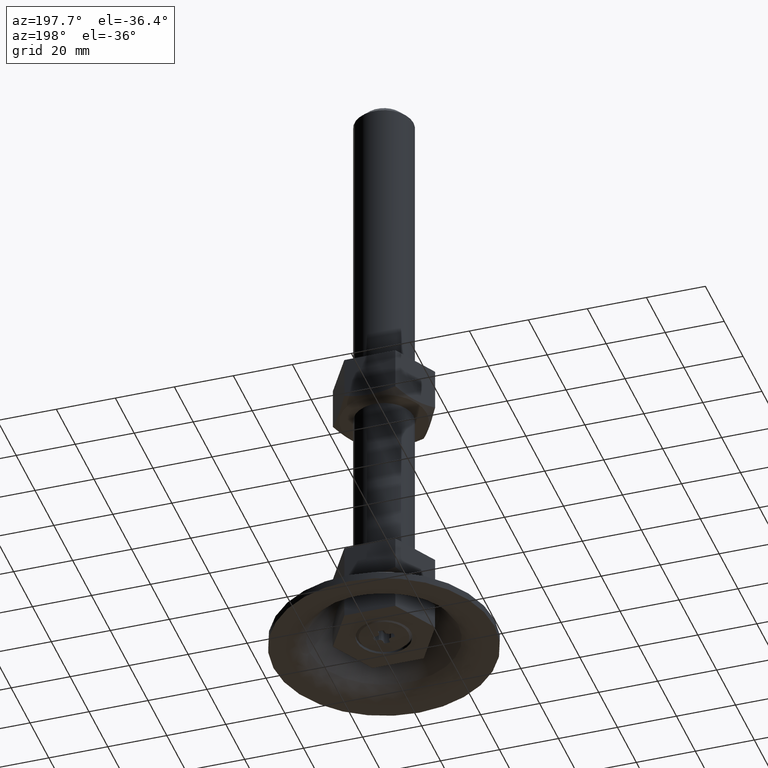
[diagram: clean part render]
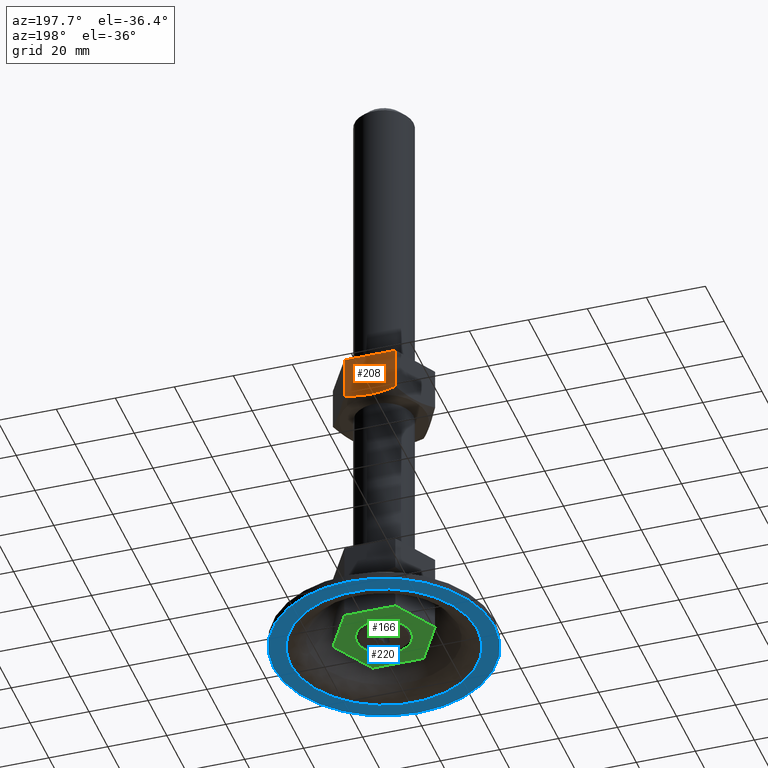
[diagram: same view with three faces highlighted in distinct colors, each labeled with its STEP entity id]
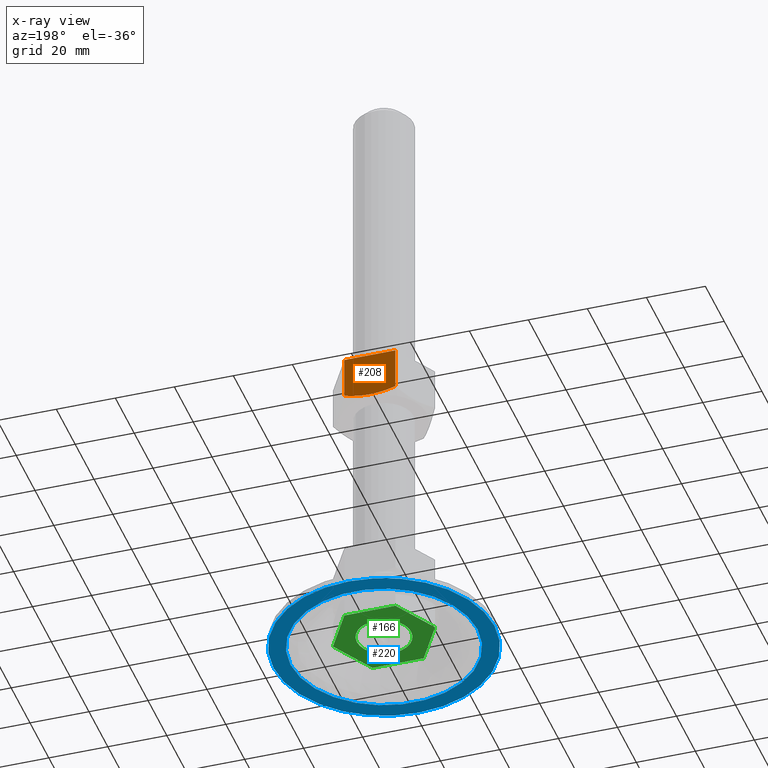
[diagram: x-ray of the same camera — body ghosted, the three highlighted faces saturated]
A machine part, auxiliary view with three faces highlighted in distinct colors.
The next image is the same camera in x-ray (body ghosted, the three faces saturated) — at least one of them is partly hidden behind the body in this view.
Their STEP definitions:

[orange] entity #208 — the highlighted planar face has unit normal (0, 1, 0).
#208=ADVANCED_FACE('',(#836),#835,.T.);
#835=PLANE('',#1545);
#836=FACE_OUTER_BOUND('',#1546,.T.);
#1542=CARTESIAN_POINT('',(1.03923048454E+01,1.50000000000E+01,5.82173577351E+01));
#1543=DIRECTION('',(8.86365613255E-14,1.00000000000E+00,0.00000000000E+00));
#1544=DIRECTION('',(-1.00000000000E+00,8.86365613255E-14,0.00000000000E+00));
#1545=AXIS2_PLACEMENT_3D('',#1542,#1543,#1544);
#1546=EDGE_LOOP('',(#2111,#2112,#2113,#2114));
#2111=ORIENTED_EDGE('',*,*,#2387,.F.);
#2112=ORIENTED_EDGE('',*,*,#2388,.T.);
#2113=ORIENTED_EDGE('',*,*,#2383,.T.);
#2114=ORIENTED_EDGE('',*,*,#2389,.F.);
#2383=EDGE_CURVE('',#3381,#3382,#3383,.T.);
#2387=EDGE_CURVE('',#3409,#3410,#3411,.T.);
#2388=EDGE_CURVE('',#3409,#3381,#3417,.T.);
#2389=EDGE_CURVE('',#3410,#3382,#3423,.T.);
#3381=VERTEX_POINT('',#4475);
#3382=VERTEX_POINT('',#4476);
#3383=LINE('',#4477,#4478);
#3409=VERTEX_POINT('',#4500);
#3410=VERTEX_POINT('',#4501);
#3411=LINE('',#4502,#4503);
#3417=(BOUNDED_CURVE() B_SPLINE_CURVE(3,(#4505,#4506,#4507,#4508,#4509,#4510,#4511,#4512,#4513,#4514,#4515,#4516),.UNSPECIFIED.,.F.,.F.) B_SPLINE_CURVE_WITH_KNOTS((4,2,2,2,2,4),(-3.33077435779E-02,-2.89241218206E-02,-2.67323109419E-02,-2.45405000633E-02,-2.01568783059E-02,-1.57732565486E-02),.UNSPECIFIED.) CURVE() GEOMETRIC_REPRESENTATION_ITEM() RATIONAL_B_SPLINE_CURVE((1.00000000000E+00,1.00000000000E+00,1.00000000000E+00,1.00000000000E+00,1.00000000000E+00,1.00000000000E+00,1.00000000000E+00,1.00000000000E+00,1.00000000000E+00,1.00000000000E+00,1.00000000000E+00,1.00000000000E+00)) REPRESENTATION_ITEM('') );
#3423=LINE('',#4517,#4518);
#4475=CARTESIAN_POINT('',(-8.66025403784E+00,1.50000000000E+01,6.11284210296E+01));
#4476=CARTESIAN_POINT('',(-8.66025403784E+00,1.50000000000E+01,7.54999999330E+01));
#4477=CARTESIAN_POINT('',(-8.66025403784E+00,1.50000000000E+01,6.11284210296E+01));
#4478=VECTOR('',#4479,1.43715789034E+01);
#4479=DIRECTION('',(0.00000000000E+00,0.00000000000E+00,1.00000000000E+00));
#4500=CARTESIAN_POINT('',(8.66025403785E+00,1.50000000000E+01,6.11284210296E+01));
#4501=CARTESIAN_POINT('',(8.66025403785E+00,1.50000000000E+01,7.54999999330E+01));
#4502=CARTESIAN_POINT('',(8.66025403785E+00,1.50000000000E+01,6.11284210296E+01));
#4503=VECTOR('',#4504,1.43715789034E+01);
#4504=DIRECTION('',(0.00000000000E+00,0.00000000000E+00,1.00000000000E+00));
#4505=CARTESIAN_POINT('',(8.66025403785E+00,1.50000000000E+01,6.11284210296E+01));
#4506=CARTESIAN_POINT('',(7.26020348425E+00,1.50000000000E+01,6.07242612476E+01));
#4507=CARTESIAN_POINT('',(5.84217204545E+00,1.50000000000E+01,6.03877947608E+01));
#4508=CARTESIAN_POINT('',(3.67457508898E+00,1.50000000000E+01,6.00357543371E+01));
#4509=CARTESIAN_POINT('',(2.94524883475E+00,1.50000000000E+01,5.99439849060E+01));
#4510=CARTESIAN_POINT('',(1.47077462541E+00,1.50000000000E+01,5.98200105788E+01));
#4511=CARTESIAN_POINT('',(7.35428845956E-01,1.50000000000E+01,5.97887593452E+01));
#4512=CARTESIAN_POINT('',(-1.46190760533E+00,1.50000000000E+01,5.97885070258E+01));
#4513=CARTESIAN_POINT('',(-2.91637233655E+00,1.50000000000E+01,5.99143646522E+01));
#4514=CARTESIAN_POINT('',(-5.80756544098E+00,1.50000000000E+01,6.03804659344E+01));
#4515=CARTESIAN_POINT('',(-7.25031843251E+00,1.50000000000E+01,6.07214076790E+01));
#4516=CARTESIAN_POINT('',(-8.66025403784E+00,1.50000000000E+01,6.11284210296E+01));
#4517=CARTESIAN_POINT('',(8.66025403785E+00,1.50000000000E+01,7.54999999330E+01));
#4518=VECTOR('',#4519,1.73205080757E+01);
#4519=DIRECTION('',(-1.00000000000E+00,8.86101205886E-14,0.00000000000E+00));

[blue] entity #220 — the highlighted planar face has unit normal (0, 0, -1).
#220=ADVANCED_FACE('',(#959,#960),#958,.T.);
#958=PLANE('',#1620);
#959=FACE_OUTER_BOUND('',#1621,.T.);
#960=FACE_BOUND('',#1622,.T.);
#1617=CARTESIAN_POINT('',(8.50000000000E+01,-7.49519052839E+01,-3.10417424306E+01));
#1618=DIRECTION('',(-0.00000000000E+00,0.00000000000E+00,-1.00000000000E+00));
#1619=DIRECTION('',(-1.00000000000E+00,0.00000000000E+00,0.00000000000E+00));
#1620=AXIS2_PLACEMENT_3D('',#1617,#1618,#1619);
#1621=EDGE_LOOP('',(#2167,#2168));
#1622=EDGE_LOOP('',(#2169,#2170));
#2167=ORIENTED_EDGE('',*,*,#2415,.T.);
#2168=ORIENTED_EDGE('',*,*,#2416,.T.);
#2169=ORIENTED_EDGE('',*,*,#2417,.F.);
#2170=ORIENTED_EDGE('',*,*,#2418,.F.);
#2415=EDGE_CURVE('',#3595,#3596,#3597,.T.);
#2416=EDGE_CURVE('',#3596,#3595,#3603,.T.);
#2417=EDGE_CURVE('',#3609,#3610,#3611,.T.);
#2418=EDGE_CURVE('',#3610,#3609,#3617,.T.);
#3595=VERTEX_POINT('',#4653);
#3596=VERTEX_POINT('',#4654);
#3597=CIRCLE('',#4658,3.75000000000E+01);
#3603=CIRCLE('',#4662,3.75000000000E+01);
#3609=VERTEX_POINT('',#4663);
#3610=VERTEX_POINT('',#4664);
#3611=CIRCLE('',#4668,3.17144183842E+01);
#3617=CIRCLE('',#4672,3.17144183842E+01);
#4653=CARTESIAN_POINT('',(-3.75000000001E+01,0.00000000000E+00,-3.10417424306E+01));
#4654=CARTESIAN_POINT('',(3.75000000000E+01,2.36847578587E-15,-3.10417424306E+01));
#4655=CARTESIAN_POINT('',(-3.52144979843E-11,0.00000000000E+00,-3.10417424306E+01));
#4656=DIRECTION('',(-0.00000000000E+00,0.00000000000E+00,-1.00000000000E+00));
#4657=DIRECTION('',(-1.00000000000E+00,-1.22460635382E-16,0.00000000000E+00));
#4658=AXIS2_PLACEMENT_3D('',#4655,#4656,#4657);
#4659=CARTESIAN_POINT('',(-3.52144979843E-11,0.00000000000E+00,-3.10417424306E+01));
#4660=DIRECTION('',(-0.00000000000E+00,0.00000000000E+00,-1.00000000000E+00));
#4661=DIRECTION('',(-1.00000000000E+00,-1.22460635382E-16,0.00000000000E+00));
#4662=AXIS2_PLACEMENT_3D('',#4659,#4660,#4661);
#4663=CARTESIAN_POINT('',(3.17144183842E+01,3.55271367880E-15,-3.10417424306E+01));
#4664=CARTESIAN_POINT('',(-3.17144183843E+01,0.00000000000E+00,-3.10417424306E+01));
#4665=CARTESIAN_POINT('',(-3.52144979843E-11,0.00000000000E+00,-3.10417424306E+01));
#4666=DIRECTION('',(-0.00000000000E+00,0.00000000000E+00,-1.00000000000E+00));
#4667=DIRECTION('',(-1.00000000000E+00,-1.22460635382E-16,0.00000000000E+00));
#4668=AXIS2_PLACEMENT_3D('',#4665,#4666,#4667);
#4669=CARTESIAN_POINT('',(-3.52144979843E-11,0.00000000000E+00,-3.10417424306E+01));
#4670=DIRECTION('',(-0.00000000000E+00,0.00000000000E+00,-1.00000000000E+00));
#4671=DIRECTION('',(-1.00000000000E+00,-1.22460635382E-16,0.00000000000E+00));
#4672=AXIS2_PLACEMENT_3D('',#4669,#4670,#4671);

[green] entity #166 — the highlighted planar face has unit normal (0, 0, 1).
#166=ADVANCED_FACE('',(#414,#415),#413,.F.);
#413=PLANE('',#1243);
#414=FACE_OUTER_BOUND('',#1244,.T.);
#415=FACE_BOUND('',#1245,.T.);
#1240=CARTESIAN_POINT('',(-2.07846096908E+01,-1.80000000000E+01,-2.70000000000E+01));
#1241=DIRECTION('',(0.00000000000E+00,-0.00000000000E+00,1.00000000000E+00));
#1242=DIRECTION('',(1.00000000000E+00,0.00000000000E+00,0.00000000000E+00));
#1243=AXIS2_PLACEMENT_3D('',#1240,#1241,#1242);
#1244=EDGE_LOOP('',(#1897,#1898,#1899,#1900,#1901,#1902));
#1245=EDGE_LOOP('',(#1903,#1904));
#1897=ORIENTED_EDGE('',*,*,#2280,.F.);
#1898=ORIENTED_EDGE('',*,*,#2294,.F.);
#1899=ORIENTED_EDGE('',*,*,#2292,.F.);
#1900=ORIENTED_EDGE('',*,*,#2289,.F.);
#1901=ORIENTED_EDGE('',*,*,#2286,.F.);
#1902=ORIENTED_EDGE('',*,*,#2283,.F.);
#1903=ORIENTED_EDGE('',*,*,#2295,.F.);
#1904=ORIENTED_EDGE('',*,*,#2296,.F.);
#2280=EDGE_CURVE('',#2698,#2684,#2705,.T.);
#2283=EDGE_CURVE('',#2684,#2712,#2725,.T.);
#2286=EDGE_CURVE('',#2712,#2732,#2745,.T.);
#2289=EDGE_CURVE('',#2732,#2752,#2765,.T.);
#2292=EDGE_CURVE('',#2752,#2772,#2785,.T.);
#2294=EDGE_CURVE('',#2772,#2698,#2797,.T.);
#2295=EDGE_CURVE('',#2803,#2804,#2805,.T.);
#2296=EDGE_CURVE('',#2804,#2803,#2811,.T.);
#2684=VERTEX_POINT('',#4036);
#2698=VERTEX_POINT('',#4055);
#2705=LINE('',#4059,#4060);
#2712=VERTEX_POINT('',#4063);
#2725=LINE('',#4079,#4080);
#2732=VERTEX_POINT('',#4083);
#2745=LINE('',#4099,#4100);
#2752=VERTEX_POINT('',#4103);
#2765=LINE('',#4121,#4122);
#2772=VERTEX_POINT('',#4125);
#2785=LINE('',#4141,#4142);
#2797=LINE('',#4156,#4157);
#2803=VERTEX_POINT('',#4159);
#2804=VERTEX_POINT('',#4160);
#2805=CIRCLE('',#4164,9.20000000000E+00);
#2811=CIRCLE('',#4168,9.20000000000E+00);
#4036=CARTESIAN_POINT('',(8.66025403791E+00,-1.50000000000E+01,-2.70000000000E+01));
#4055=CARTESIAN_POINT('',(-8.66025403778E+00,-1.50000000000E+01,-2.70000000000E+01));
#4059=CARTESIAN_POINT('',(-8.66025403778E+00,-1.50000000000E+01,-2.70000000000E+01));
#4060=VECTOR('',#4061,1.73205080757E+01);
#4061=DIRECTION('',(1.00000000000E+00,4.31235920198E-12,0.00000000000E+00));
#4063=CARTESIAN_POINT('',(1.73205080757E+01,7.50759454604E-11,-2.70000000000E+01));
#4079=CARTESIAN_POINT('',(8.66025403791E+00,-1.50000000000E+01,-2.70000000000E+01));
#4080=VECTOR('',#4081,1.73205080757E+01);
#4081=DIRECTION('',(4.99999999996E-01,8.66025403787E-01,0.00000000000E+00));
#4083=CARTESIAN_POINT('',(8.66025403778E+00,1.50000000000E+01,-2.70000000000E+01));
#4099=CARTESIAN_POINT('',(1.73205080757E+01,7.50625665679E-11,-2.70000000000E+01));
#4100=VECTOR('',#4101,1.73205080757E+01);
#4101=DIRECTION('',(-5.00000000004E-01,8.66025403782E-01,0.00000000000E+00));
#4103=CARTESIAN_POINT('',(-8.66025403791E+00,1.50000000000E+01,-2.70000000000E+01));
#4121=CARTESIAN_POINT('',(8.66025403778E+00,1.50000000000E+01,-2.70000000000E+01));
#4122=VECTOR('',#4123,1.73205080757E+01);
#4123=DIRECTION('',(-1.00000000000E+00,-4.25164486009E-12,0.00000000000E+00));
#4125=CARTESIAN_POINT('',(-1.73205080757E+01,-7.50475237510E-11,-2.70000000000E+01));
#4141=CARTESIAN_POINT('',(-8.66025403791E+00,1.50000000000E+01,-2.70000000000E+01));
#4142=VECTOR('',#4143,1.73205080757E+01);
#4143=DIRECTION('',(-4.99999999996E-01,-8.66025403787E-01,0.00000000000E+00));
#4156=CARTESIAN_POINT('',(-1.73205080757E+01,-7.50921870433E-11,-2.70000000000E+01));
#4157=VECTOR('',#4158,1.73205080757E+01);
#4158=DIRECTION('',(5.00000000004E-01,-8.66025403782E-01,0.00000000000E+00));
#4159=CARTESIAN_POINT('',(-9.20000000000E+00,1.77635683940E-15,-2.70000000000E+01));
#4160=CARTESIAN_POINT('',(9.20000000000E+00,0.00000000000E+00,-2.70000000000E+01));
#4161=CARTESIAN_POINT('',(0.00000000000E+00,0.00000000000E+00,-2.70000000000E+01));
#4162=DIRECTION('',(0.00000000000E+00,0.00000000000E+00,-1.00000000000E+00));
#4163=DIRECTION('',(1.00000000000E+00,-1.22460635382E-16,0.00000000000E+00));
#4164=AXIS2_PLACEMENT_3D('',#4161,#4162,#4163);
#4165=CARTESIAN_POINT('',(0.00000000000E+00,0.00000000000E+00,-2.70000000000E+01));
#4166=DIRECTION('',(0.00000000000E+00,0.00000000000E+00,-1.00000000000E+00));
#4167=DIRECTION('',(1.00000000000E+00,-1.22460635382E-16,0.00000000000E+00));
#4168=AXIS2_PLACEMENT_3D('',#4165,#4166,#4167);